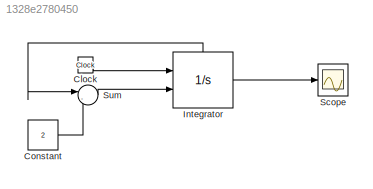
MODEL slx_1328e2780450
KIND model
BLOCK [Clock] Clock
BLOCK [Constant] Constant
  Value = 2
BLOCK [Integrator] Integrator
  ExternalReset = falling
  Ports = [2, 1, 0, 0, 1]
  ShowStatePort = on
BLOCK [Scope] Scope
  DataFormat = StructureWithTime
  Floating = off
  NumInputPorts = 1
  Ports = [1]
  SampleTime = 0
  ShowLegends = off
BLOCK [Sum] Sum
  IconShape = round
  InputSameDT = off
  Inputs = |-+
  OutDataTypeStr = Inherit: Inherit via internal rule
  Ports = [2, 1]
  SaturateOnIntegerOverflow = off
LINE Clock:1 -> Integrator:1
LINE Constant:1 -> Sum:2
LINE Integrator:1 -> Scope:1
LINE Integrator:state -> Sum:1
LINE Sum:1 -> Integrator:2
